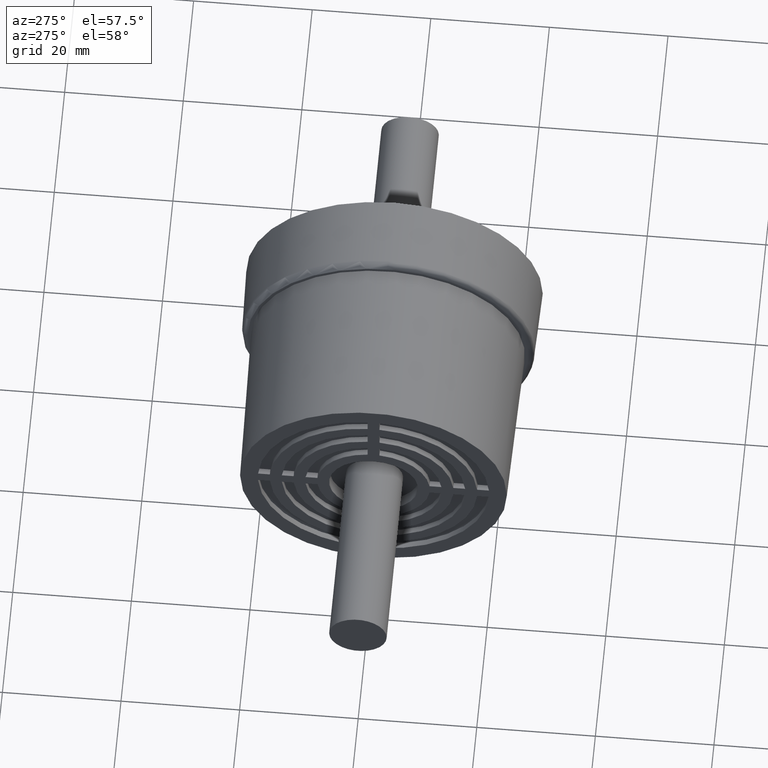
[diagram: clean part render]
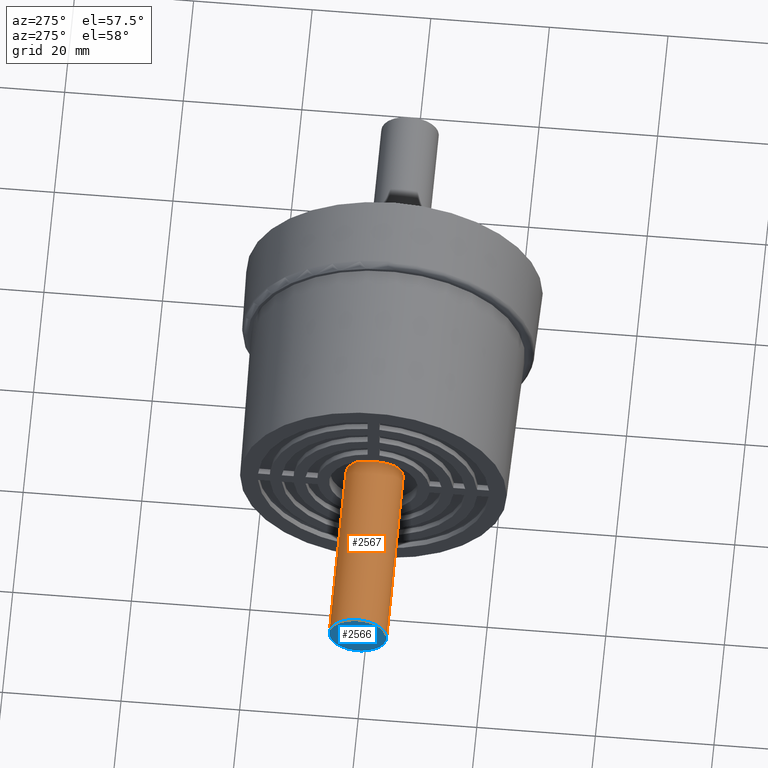
[diagram: same view with the hole feature highlighted: cylindrical wall and planar end face, labeled with their STEP entity ids]
A machine part, auxiliary view. The highlighted faces form one hole feature of diameter 9.7 mm: the cylindrical wall (entity #2567, orange) and its adjacent planar end face (entity #2566, blue) — they share a circular edge in the B-rep.
Wall:
#522=CYLINDRICAL_SURFACE('',#2848,4.85000000000001);
#655=FACE_BOUND('',#1003,.T.);
#809=FACE_OUTER_BOUND('',#1002,.T.);
#1002=EDGE_LOOP('',(#2411));
#1003=EDGE_LOOP('',(#2412));
#1077=CIRCLE('',#2730,4.85000000000001);
#1128=CIRCLE('',#2847,4.85000000000001);
#1266=VERTEX_POINT('',#4059);
#1365=VERTEX_POINT('',#4371);
#1567=EDGE_CURVE('',#1266,#1266,#1077,.T.);
#1714=EDGE_CURVE('',#1365,#1365,#1128,.T.);
#2411=ORIENTED_EDGE('',*,*,#1567,.T.);
#2412=ORIENTED_EDGE('',*,*,#1714,.T.);
#2567=ADVANCED_FACE('',(#809,#655),#522,.T.);
#2730=AXIS2_PLACEMENT_3D('',#4060,#3299,#3300);
#2847=AXIS2_PLACEMENT_3D('',#4372,#3629,#3630);
#2848=AXIS2_PLACEMENT_3D('',#4373,#3631,#3632);
#3299=DIRECTION('center_axis',(-1.,-1.83697019872103E-16,0.));
#3300=DIRECTION('ref_axis',(0.,0.,-1.));
#3629=DIRECTION('center_axis',(1.,1.83697019872103E-16,0.));
#3630=DIRECTION('ref_axis',(0.,0.,-1.));
#3631=DIRECTION('center_axis',(1.,1.83697019872103E-16,0.));
#3632=DIRECTION('ref_axis',(0.,1.,0.));
#4059=CARTESIAN_POINT('',(-68.5,-1.19892921636526E-14,4.85000000000001));
#4060=CARTESIAN_POINT('Origin',(-68.5,-1.25832458612391E-14,0.));
#4371=CARTESIAN_POINT('',(-100.5,4.84999999999999,0.));
#4372=CARTESIAN_POINT('Origin',(-100.5,-1.84615504971463E-14,0.));
#4373=CARTESIAN_POINT('Origin',(-50.25,-9.23077524857317E-15,0.));
End face:
#615=PLANE('',#2846);
#808=FACE_OUTER_BOUND('',#1001,.T.);
#1001=EDGE_LOOP('',(#2410));
#1128=CIRCLE('',#2847,4.85000000000001);
#1365=VERTEX_POINT('',#4371);
#1714=EDGE_CURVE('',#1365,#1365,#1128,.T.);
#2410=ORIENTED_EDGE('',*,*,#1714,.F.);
#2566=ADVANCED_FACE('',(#808),#615,.T.);
#2846=AXIS2_PLACEMENT_3D('',#4370,#3627,#3628);
#2847=AXIS2_PLACEMENT_3D('',#4372,#3629,#3630);
#3627=DIRECTION('center_axis',(-1.,-1.83697019872103E-16,0.));
#3628=DIRECTION('ref_axis',(0.,0.,1.));
#3629=DIRECTION('center_axis',(1.,1.83697019872103E-16,0.));
#3630=DIRECTION('ref_axis',(0.,0.,-1.));
#4370=CARTESIAN_POINT('Origin',(-100.5,4.84999999999999,0.));
#4371=CARTESIAN_POINT('',(-100.5,4.84999999999999,0.));
#4372=CARTESIAN_POINT('Origin',(-100.5,-1.84615504971463E-14,0.));